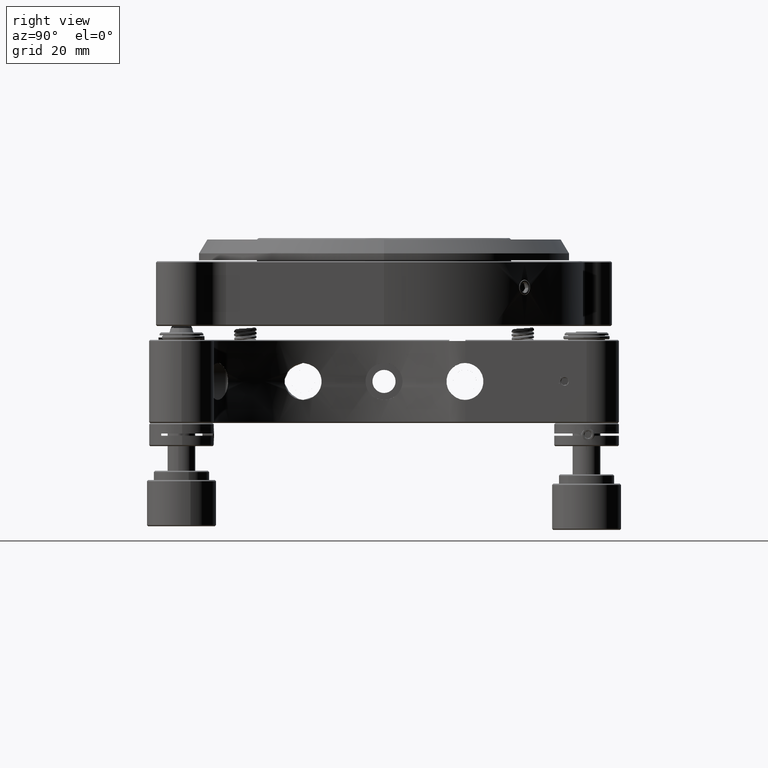
[diagram: clean part render]
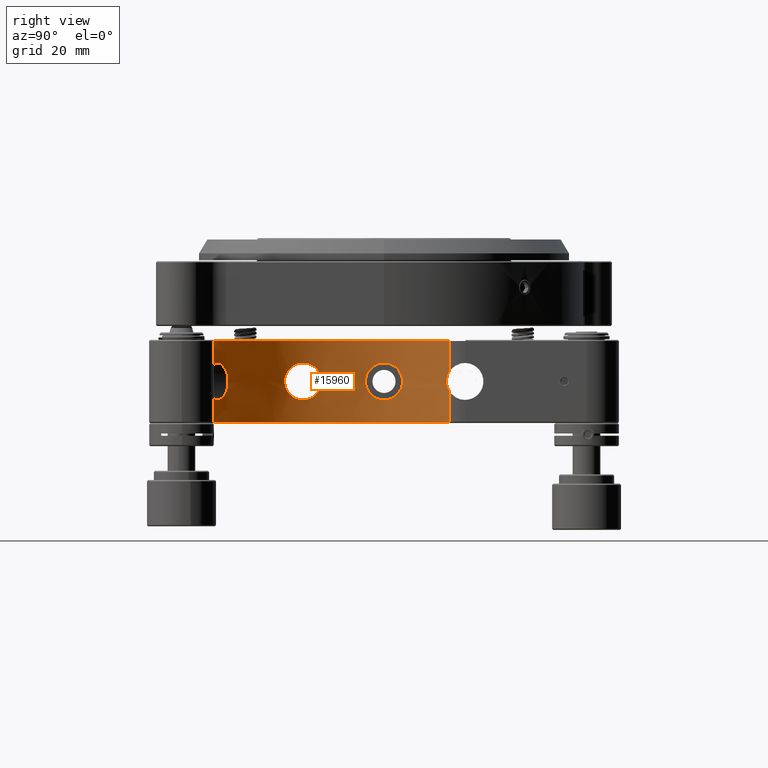
[diagram: same view with one face highlighted and labeled with its STEP entity id]
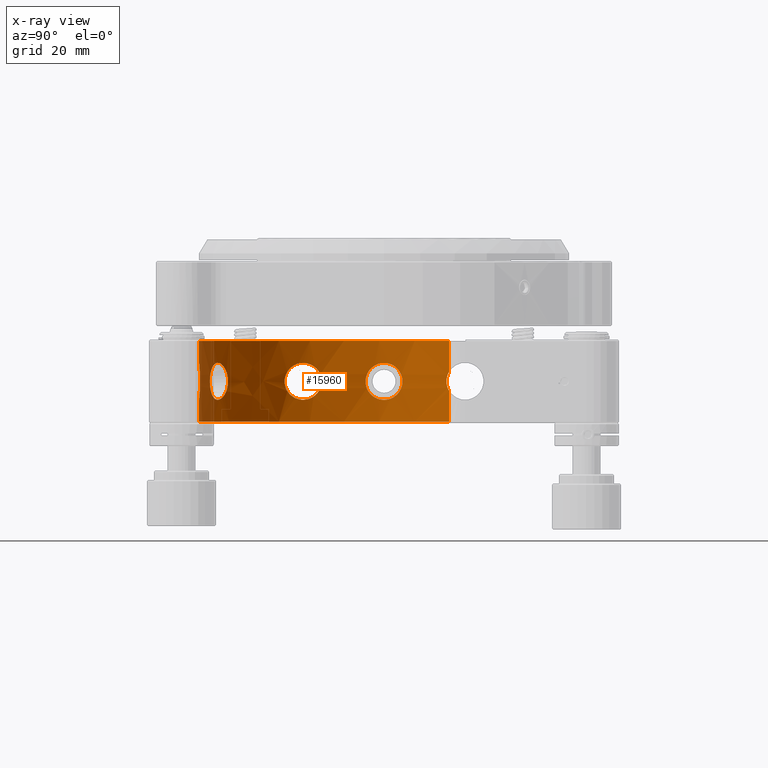
[diagram: x-ray of the same camera — body ghosted, the highlighted face saturated]
A machine part, right view. The second image highlights one B-rep face of the part: STEP entity #15960.
The next image is the same camera in x-ray: the body ghosted, the highlighted face saturated — about 6% of this face is hidden behind the body in this view.
In plain terms, the highlighted face is a freeform B-spline surface patch.
Its self-contained STEP definition (entity closure, byte-faithful):
#61 = EDGE_LOOP ( 'NONE', ( #30459, #5881 ) ) ;
#98 = CARTESIAN_POINT ( 'NONE',  ( -37.63835189146328020, -13.54115509620776514, 0.6677654699018493734 ) ) ;
#163 = CARTESIAN_POINT ( 'NONE',  ( -39.99627761774787871, -0.5524775610635955791, -3.962621721060270996 ) ) ;
#363 = CARTESIAN_POINT ( 'NONE',  ( -39.90019896784426123, -2.830254653130989784, 2.837940357245692269 ) ) ;
#505 = CARTESIAN_POINT ( 'NONE',  ( -39.99972855927739346, 0.1542877115653384368, 3.997317333208897150 ) ) ;
#697 = CARTESIAN_POINT ( 'NONE',  ( -39.96844666813080238, 1.604603727495569565, -3.671971395014493655 ) ) ;
#739 = CARTESIAN_POINT ( 'NONE',  ( -39.99829199285389336, -0.3749458644491316939, -3.982917223032022225 ) ) ;
#891 = CARTESIAN_POINT ( 'NONE',  ( -39.92557931512293834, 2.441684322637925675, -3.171655794013915397 ) ) ;
#943 = CARTESIAN_POINT ( 'NONE',  ( -39.94624908641521444, -2.078521805343463758, 3.421919726168121567 ) ) ;
#1098 = CARTESIAN_POINT ( 'NONE',  ( -39.80369778350723209, 3.958936789472232931, 0.6678191733673830566 ) ) ;
#1138 = CARTESIAN_POINT ( 'NONE',  ( -3.978625646885996403, -39.80169568204865982, 0.4846373347652446206 ) ) ;
#1265 = CARTESIAN_POINT ( 'NONE',  ( -36.10428380966636297, -17.21865001847046273, -3.990154746224642057 ) ) ;
#1334 = CARTESIAN_POINT ( 'NONE',  ( -0.4765487759058549821, -40.00000000000000000, -3.999999999999996447 ) ) ;
#1462 = CARTESIAN_POINT ( 'NONE',  ( -17.34394818696541307, -36.04427922726007694, -3.997232773962706265 ) ) ;
#1523 = CARTESIAN_POINT ( 'NONE',  ( -0.4765305517823545944, -39.99999999999999289, 3.999999999999995559 ) ) ;
#1841 = CARTESIAN_POINT ( 'NONE',  ( -15.91005993947546671, -36.69985822406773224, 3.671740031944090266 ) ) ;
#1967 = CARTESIAN_POINT ( 'NONE',  ( -17.60100897153016319, -35.91959216298144497, -3.999999999999994227 ) ) ;
#2034 = CARTESIAN_POINT ( 'NONE',  ( -17.49999999999999645, -35.96873642484539602, 3.999999999999995559 ) ) ;
#2097 = EDGE_CURVE ( 'NONE', #2137, #26670, #9236, .T. ) ;
#2111 = B_SPLINE_CURVE_WITH_KNOTS ( 'NONE', 3,
 ( #21247, #1334, #34044, #7822, #37602, #37787, #7045, #19441, #22600, #25568, #25752, #25371, #1138, #4665, #7621, #34629, #4281, #31475, #7433, #31086, #1523, #37967 ),
 .UNSPECIFIED., .F., .F.,
 ( 4, 2, 2, 2, 2, 2, 2, 2, 2, 2, 4 ),
 ( -0.01251363910665968630, -0.01094943421832722530, -0.009385229329994766029, -0.007821024441662305024, -0.007038921997496074522, -0.006256819553329844887, -0.005474717109163614384, -0.004692614664997383014, -0.003128409776664923744, -0.001564204888332461005, 0.000000000000000000 ),
 .UNSPECIFIED. ) ;
#2137 = VERTEX_POINT ( 'NONE', #19058 ) ;
#2159 = DIRECTION ( 'NONE',  ( -0.000000000000000000, -0.000000000000000000, -1.000000000000000000 ) ) ;
#2308 = CARTESIAN_POINT ( 'NONE',  ( -34.44888157187676825, -20.33034373189430255, -2.837823029014417742 ) ) ;
#2358 = CARTESIAN_POINT ( 'NONE',  ( -17.92730020087754639, -35.75771616855123369, 3.977784140755788123 ) ) ;
#2506 = CARTESIAN_POINT ( 'NONE',  ( -33.73054830822407268, -21.50000257736197895, 0.3338952163069119905 ) ) ;
#2557 = CARTESIAN_POINT ( 'NONE',  ( -18.30218780570437787, -35.56751152720526221, 3.921308254659097603 ) ) ;
#2620 = CARTESIAN_POINT ( 'NONE',  ( -13.71372265809628566, -37.57581984542393627, -1.335518498577112245 ) ) ;
#2657 = CARTESIAN_POINT ( 'NONE',  ( -37.52815547312672351, -13.84485624806169568, 1.669369033324699991 ) ) ;
#2679 = ORIENTED_EDGE ( 'NONE', *, *, #21130, .T. ) ;
#2695 = CARTESIAN_POINT ( 'NONE',  ( -35.83011725993910801, -17.78212400804123305, 3.990185732374598615 ) ) ;
#2753 = CARTESIAN_POINT ( 'NONE',  ( -21.45883272350323878, -33.75690909726704092, 0.6678205867305124777 ) ) ;
#2860 = CARTESIAN_POINT ( 'NONE',  ( -36.55730634851546768, -16.23510725322373460, 3.796669672036292020 ) ) ;
#2900 = CARTESIAN_POINT ( 'NONE',  ( -34.80816480681212965, -19.70811317310840138, 3.338368793541058199 ) ) ;
#3049 = CARTESIAN_POINT ( 'NONE',  ( -36.96189041479899373, -15.29165108023985731, -3.338277056739678894 ) ) ;
#3091 = CARTESIAN_POINT ( 'NONE',  ( 40.00000000000000000, 0.000000000000000000, 10.50119999999999543 ) ) ;
#3121 = CARTESIAN_POINT ( 'NONE',  ( -39.86772292290690700, -3.253114051716815336, 2.337212283783952849 ) ) ;
#3132 = ORIENTED_EDGE ( 'NONE', *, *, #3406, .T. ) ;
#3308 = CARTESIAN_POINT ( 'NONE',  ( -39.92558172560803342, -2.441645083704542252, 3.171684462367527768 ) ) ;
#3316 = ORIENTED_EDGE ( 'NONE', *, *, #31764, .F. ) ;
#3351 = VERTEX_POINT ( 'NONE', #19310 ) ;
#3406 = EDGE_CURVE ( 'NONE', #19738, #34666, #13116, .T. ) ;
#3437 = CARTESIAN_POINT ( 'NONE',  ( -36.38876720315924729, -16.60921104419410810, -3.900493340279390431 ) ) ;
#3448 = CARTESIAN_POINT ( 'NONE',  ( 1.656376832334224318E-15, -4.317300331868715543E-16, -8.750000000000010658 ) ) ;
#3467 = CARTESIAN_POINT ( 'NONE',  ( -39.83311961670013090, 3.655150544130703949, -1.669462070535219000 ) ) ;
#3506 = CARTESIAN_POINT ( 'NONE',  ( -39.83309317971568220, -3.655449600149863087, 1.669484392498999048 ) ) ;
#3626 = CARTESIAN_POINT ( 'NONE',  ( -36.14926851131871643, -17.12411333665545143, -3.982729677400198565 ) ) ;
#3649 = CARTESIAN_POINT ( 'NONE',  ( -39.99829182042948617, 0.3749650873344573254, 3.982917145378676693 ) ) ;
#3846 = CARTESIAN_POINT ( 'NONE',  ( -39.88867237200804539, 2.985277308223943216, -2.671017699753407637 ) ) ;
#4046 = CARTESIAN_POINT ( 'NONE',  ( -39.85827566773672004, 3.365597535261287909, -2.170263617567433023 ) ) ;
#4281 = CARTESIAN_POINT ( 'NONE',  ( -3.215449219817965609, -39.87242481481645484, 2.441144158693299815 ) ) ;
#4554 = ORIENTED_EDGE ( 'NONE', *, *, #30686, .F. ) ;
#4665 = CARTESIAN_POINT ( 'NONE',  ( -3.885541407282063098, -39.81086023617326219, 0.9833124409890779960 ) ) ;
#4682 = CARTESIAN_POINT ( 'NONE',  ( -35.89245975460747928, -17.65598947725379375, -3.997235218005045443 ) ) ;
#4919 = CARTESIAN_POINT ( 'NONE',  ( -18.39291829531251565, -35.52054567398268148, 3.900602226900349745 ) ) ;
#4982 = CARTESIAN_POINT ( 'NONE',  ( -17.07729756425152345, -36.17137260131564602, 3.977680761887338878 ) ) ;
#5105 = CARTESIAN_POINT ( 'NONE',  ( -18.99159834760485666, -35.20420040744212997, -3.713450883852470685 ) ) ;
#5175 = CARTESIAN_POINT ( 'NONE',  ( -13.54111676439759648, -37.63836583822268267, -0.6677690217815605012 ) ) ;
#5192 = VERTEX_POINT ( 'NONE', #23161 ) ;
#5254 = CARTESIAN_POINT ( 'NONE',  ( -33.86603286373001964, -21.28619870528670077, -1.335560782773965727 ) ) ;
#5258 = CARTESIAN_POINT ( 'NONE',  ( -39.99999999999999289, -39.99999999999999289, -10.50120000000001319 ) ) ;
#5309 = CARTESIAN_POINT ( 'NONE',  ( -20.04579463261882566, -34.61470984718273769, 3.088168212165855575 ) ) ;
#5453 = CARTESIAN_POINT ( 'NONE',  ( -35.56909644880524013, -18.29910995388300066, 3.921250007964292461 ) ) ;
#5505 = CARTESIAN_POINT ( 'NONE',  ( -21.45890526562571665, -33.75686324385466008, -0.6677500684353099292 ) ) ;
#5566 = CARTESIAN_POINT ( 'NONE',  ( -14.66949457456827766, -37.21354354537511000, -2.837745341127479559 ) ) ;
#5605 = CARTESIAN_POINT ( 'NONE',  ( -36.81214506662873731, -15.64841028571921733, 3.546754437522040782 ) ) ;
#5649 = CARTESIAN_POINT ( 'NONE',  ( -34.35655812973212164, -20.48539342985867862, -2.670936438093695742 ) ) ;
#5700 = CARTESIAN_POINT ( 'NONE',  ( -19.70823889027717257, -34.80809398723091874, -3.338347044205813852 ) ) ;
#5767 = CARTESIAN_POINT ( 'NONE',  ( -16.61023697856343873, -36.38829933815286921, 3.900483348401133199 ) ) ;
#5808 = CARTESIAN_POINT ( 'NONE',  ( -37.65302096203562598, -13.50000046046312363, -0.3338729545792272768 ) ) ;
#5843 = CARTESIAN_POINT ( 'NONE',  ( -34.88122563988745384, -19.57881921008947401, -3.421765220045678735 ) ) ;
#5845 = CARTESIAN_POINT ( 'NONE',  ( 2.449293598294706513E-15, 40.00000000000000000, 10.50119999999999543 ) ) ;
#5881 = ORIENTED_EDGE ( 'NONE', *, *, #35741, .T. ) ;
#6075 = CARTESIAN_POINT ( 'NONE',  ( -39.99525938616459797, -0.6187087976194743932, -3.952357451064196336 ) ) ;
#6115 = CARTESIAN_POINT ( 'NONE',  ( -40.00000000000000000, -5.573779343259506741E-15, -3.999999999999994227 ) ) ;
#6196 = CARTESIAN_POINT ( 'NONE',  ( -37.27395507910442518, -14.51457486872652147, -2.670838904263325819 ) ) ;
#6265 = CARTESIAN_POINT ( 'NONE',  ( -39.99627739497348955, -0.5524933271334515617, 3.962621675255184606 ) ) ;
#6271 = CARTESIAN_POINT ( 'NONE',  ( -7.347880794884118356E-15, -40.00000000000000000, -8.673617379884035472E-15 ) ) ;
#6388 = CARTESIAN_POINT ( 'NONE',  ( -37.65302128304967511, -13.49999956511881471, 0.3338922949865094081 ) ) ;
#6453 = CARTESIAN_POINT ( 'NONE',  ( -39.99829181772172149, -0.3749657552671767369, 3.982917039168228257 ) ) ;
#6617 = CARTESIAN_POINT ( 'NONE',  ( -39.93918788383908236, 2.207935044105936218, -3.338490986685100026 ) ) ;
#6631 = CARTESIAN_POINT ( 'NONE',  ( -39.99999999999999289, 39.99999999999999289, 10.50119999999999543 ) ) ;
#6656 = CARTESIAN_POINT ( 'NONE',  ( -39.80369434399811013, -3.958972849091661583, 0.6678061766307894498 ) ) ;
#6676 = CARTESIAN_POINT ( 'NONE',  ( -17.49999999999999645, -35.96873642484539602, 3.999999999999995559 ) ) ;
#7006 = CARTESIAN_POINT ( 'NONE',  ( -39.85827720001577745, 3.365580616311291795, 2.170295114740126152 ) ) ;
#7045 = CARTESIAN_POINT ( 'NONE',  ( -3.519337831817657136, -39.84541039389105777, -1.973461519308827405 ) ) ;
#7169 = CARTESIAN_POINT ( 'NONE',  ( -36.17173939000083038, -17.07652106985889873, -3.977688795606788119 ) ) ;
#7198 = CARTESIAN_POINT ( 'NONE',  ( -39.94625113492547541, 2.078482011738460145, -3.421889926630354406 ) ) ;
#7312 = CARTESIAN_POINT ( 'NONE',  ( 3.001117515795942703E-15, -40.00000000000000000, 3.999999999999994671 ) ) ;
#7367 = CARTESIAN_POINT ( 'NONE',  ( -35.96873642484539602, -17.50000000000000355, -3.999999999999993339 ) ) ;
#7433 = CARTESIAN_POINT ( 'NONE',  ( -1.975861943366360451, -39.95420859884185205, 3.518141083846721084 ) ) ;
#7451 = CARTESIAN_POINT ( 'NONE',  ( -35.69409215689682213, -18.05384041457368838, -3.962456065646545067 ) ) ;
#7621 = CARTESIAN_POINT ( 'NONE',  ( -3.813567771930539418, -39.81794455982836922, 1.235628204148385478 ) ) ;
#7786 = B_SPLINE_CURVE_WITH_KNOTS ( 'NONE', 3,
 ( #35673, #1967, #29737, #26589, #35467, #13966, #20274, #8657, #11038, #11814, #38630, #8457, #19889, #5105, #14756, #26001, #20479, #38042, #5700, #38233, #11619, #8072, #29352, #23059, #32510, #20084, #11217, #5505, #35083, #34894, #2753, #26793, #17506, #17111, #7888, #38833, #31927, #5309, #14163, #29543, #28962, #14551, #20675, #26198, #14354, #4919, #2557, #23250, #32702, #2358, #16922, #26394, #38431, #11417, #36458, #6676 ),
 .UNSPECIFIED., .F., .F.,
 ( 4, 2, 2, 2, 2, 2, 2, 2, 2, 2, 2, 2, 2, 2, 2, 2, 2, 2, 2, 2, 2, 2, 2, 2, 2, 2, 2, 4 ),
 ( 0.000000000000000000, 1.306553423742461432E-05, 2.613106847484922865E-05, 5.226213694969728500E-05, 0.0001045242738993950986, 0.0002090485477987931245, 0.0004180970955975926457, 0.0006271456433963921127, 0.0008361941911951915798, 0.001254291286792789863, 0.001672388382390388364, 0.002508582573585569318, 0.003344776764780751140, 0.005017165147171119555, 0.006689553529561488403, 0.008361941911951857251, 0.01003433029434222523, 0.01087052448553740489, 0.01170671867673258454, 0.01212481577233016743, 0.01254291286792774858, 0.01296100996352532973, 0.01317005851132412551, 0.01327458278522352340, 0.01332684492217322235, 0.01335297599064807356, 0.01336604152488550003, 0.01337910705912292650 ),
 .UNSPECIFIED. ) ;
#7822 = CARTESIAN_POINT ( 'NONE',  ( -1.975825443619966704, -39.95420606110928219, -3.518148438699475911 ) ) ;
#7841 = CARTESIAN_POINT ( 'NONE',  ( -39.99999999999999289, 39.99999999999999289, -10.50120000000001319 ) ) ;
#7888 = CARTESIAN_POINT ( 'NONE',  ( -20.75323866529611649, -34.19543130784988705, 2.337164092831633067 ) ) ;
#7954 = CARTESIAN_POINT ( 'NONE',  ( -16.70177429548267511, -36.34650170559374516, 3.921190617449004989 ) ) ;
#8072 = CARTESIAN_POINT ( 'NONE',  ( -20.33028373454773075, -34.44891593492126702, -2.837796595770481378 ) ) ;
#8209 = CARTESIAN_POINT ( 'NONE',  ( -35.20419650453125371, -18.99160646389283968, 3.713471418728436113 ) ) ;
#8251 = CARTESIAN_POINT ( 'NONE',  ( -37.72079920409428411, 13.30621447434415572, 2.385244779468109755E-15 ) ) ;
#8352 = ORIENTED_EDGE ( 'NONE', *, *, #38044, .T. ) ;
#8404 = CARTESIAN_POINT ( 'NONE',  ( -34.44886245456238072, -20.33037667377405100, 2.837820188941165167 ) ) ;
#8457 = CARTESIAN_POINT ( 'NONE',  ( -18.63909200972604552, -35.39235969563701900, -3.838274222860212692 ) ) ;
#8527 = CARTESIAN_POINT ( 'NONE',  ( -13.50001557207532343, -37.65301554396390316, 0.3338684224716251259 ) ) ;
#8564 = CARTESIAN_POINT ( 'NONE',  ( -37.57584963709800263, -13.71364059961371318, 1.335515604476839258 ) ) ;
#8608 = FACE_BOUND ( 'NONE', #61, .T. ) ;
#8657 = CARTESIAN_POINT ( 'NONE',  ( -18.05343668447303074, -35.69429726682950132, -3.962431518012581311 ) ) ;
#8670 = VERTEX_POINT ( 'NONE', #13414 ) ;
#8721 = CARTESIAN_POINT ( 'NONE',  ( -16.36132676885475590, -36.50123547485710418, 3.838223078138996325 ) ) ;
#8760 = CARTESIAN_POINT ( 'NONE',  ( -37.52815719176339115, -13.84485129874159348, -1.669349700123401226 ) ) ;
#8797 = CARTESIAN_POINT ( 'NONE',  ( -34.61491806006094407, -20.04543670571909786, 3.088120219692038315 ) ) ;
#8956 = B_SPLINE_CURVE_WITH_KNOTS ( 'NONE', 3,
 ( #17064, #26148, #4682, #13350, #16308, #16690, #25392, #7451, #19461, #13724, #25770, #37803, #10787, #21019, #29491, #26931, #14695, #5843, #35811, #29683, #17263, #2308, #5649, #29884, #23601, #29298, #5254, #23203, #17652, #2506, #18055, #11563, #11172, #15091, #38187, #38575, #8404, #8797, #26739, #2900, #11760, #35624, #35227, #38978, #8209, #20225, #14499, #38782, #5453, #11958, #32259, #17454, #14901, #2695, #23989, #23792, #17846, #36016 ),
 .UNSPECIFIED., .F., .F.,
 ( 4, 2, 2, 2, 2, 2, 2, 2, 2, 2, 2, 2, 2, 2, 2, 2, 2, 2, 2, 2, 2, 2, 2, 2, 2, 2, 2, 2, 4 ),
 ( 0.01305559784730942266, 0.01306866328133887874, 0.01308172871536833481, 0.01310785958342724697, 0.01316012131954506954, 0.01326464479178071469, 0.01347369173625200846, 0.01368273868072330049, 0.01389178562519459426, 0.01430987951413717485, 0.01472797340307975544, 0.01556416118096490796, 0.01640034895885006047, 0.01807272451462035856, 0.01974510007039066012, 0.02141747562616095821, 0.02308985118193125630, 0.02392603895981641055, 0.02476222673770156479, 0.02518032062664413845, 0.02559841451558671904, 0.02580746146005800934, 0.02601650840452929964, 0.02622555534900058993, 0.02633007882123623855, 0.02638234055735406286, 0.02640847142541297154, 0.02642153685944242936, 0.02643460229347188023 ),
 .UNSPECIFIED. ) ;
#9069 = CARTESIAN_POINT ( 'NONE',  ( -39.99628638080277199, 0.5519041445888055453, -3.962587149442783563 ) ) ;
#9144 = VECTOR ( 'NONE', #10786, 1000.000000000000000 ) ;
#9162 = CARTESIAN_POINT ( 'NONE',  ( -36.96184117897875154, -15.29176962483961510, 3.338296346180967156 ) ) ;
#9174 = DIRECTION ( 'NONE',  ( -1.320629267893251311E-16, 1.000000000000000000, 0.000000000000000000 ) ) ;
#9228 = CARTESIAN_POINT ( 'NONE',  ( -40.00000000000000000, -0.09834590546397786737, 3.999999999143893259 ) ) ;
#9236 = LINE ( 'NONE', #6271, #37662 ) ;
#9353 = CARTESIAN_POINT ( 'NONE',  ( -36.38869345367492514, -16.60937245230862658, 3.900512330828853180 ) ) ;
#9418 = CARTESIAN_POINT ( 'NONE',  ( -39.93919047165844205, -2.207888428243577117, 3.338520395585077960 ) ) ;
#9561 = CARTESIAN_POINT ( 'NONE',  ( -39.88867461541710924, 2.985247492162294236, 2.671049320915570569 ) ) ;
#9579 = CARTESIAN_POINT ( 'NONE',  ( 40.00000000000000000, 0.000000000000000000, 10.50119999999999543 ) ) ;
#9606 = CARTESIAN_POINT ( 'NONE',  ( -39.96844893078883842, -1.604570507497588672, 3.672023015596482587 ) ) ;
#9806 = CARTESIAN_POINT ( 'NONE',  ( -39.98017925467951983, -1.264181899627357497, 3.796897296038140190 ) ) ;
#9958 = CARTESIAN_POINT ( 'NONE',  ( -39.99221747108655478, 0.7980189221390447951, 3.921428583463926643 ) ) ;
#9999 = CARTESIAN_POINT ( 'NONE',  ( -39.99927146980769521, -0.2457058176514392012, 3.992733918611103938 ) ) ;
#10411 = CARTESIAN_POINT ( 'NONE',  ( -35.96873642484539602, -17.50000000000000355, 3.999999999999998224 ) ) ;
#10470 = DIRECTION ( 'NONE',  ( 0.000000000000000000, -0.000000000000000000, 1.000000000000000000 ) ) ;
#10786 = DIRECTION ( 'NONE',  ( -0.000000000000000000, -0.000000000000000000, -1.000000000000000000 ) ) ;
#10787 = CARTESIAN_POINT ( 'NONE',  ( -35.32569175766462877, -18.76464942603919184, -3.796719836841353057 ) ) ;
#10824 = CARTESIAN_POINT ( 'NONE',  ( -37.58524304980341668, 13.69378552665911286, 1.437806344042724671 ) ) ;
#10890 = B_SPLINE_CURVE_WITH_KNOTS ( 'NONE', 3,
 ( #23951, #20977, #33208, #23556, #24342, #15051, #32805, #36180, #36373, #18014, #9353, #38939, #2860, #27089, #24142, #30044, #5605, #23753, #9162, #35776, #35974, #35579, #20583, #18400, #21181, #2657, #8564, #98, #6388, #5808, #11920, #21373, #8760, #17806, #32612, #6196, #33009, #29645, #14655, #3049, #33405, #12112, #38740, #18207, #15243, #11719, #30434, #3437, #26499, #34368, #18983, #7169, #3626, #1265, #12677, #31216, #31014, #7367 ),
 .UNSPECIFIED., .F., .F.,
 ( 4, 2, 2, 2, 2, 2, 2, 2, 2, 2, 2, 2, 2, 2, 2, 2, 2, 2, 2, 2, 2, 2, 2, 2, 2, 2, 2, 2, 4 ),
 ( 0.000000000000000000, 1.274960727276226442E-05, 2.549921454552452884E-05, 5.099842909105130063E-05, 0.0001019968581821048645, 0.0002039937163642094580, 0.0004079874327284187534, 0.0006119811490926280488, 0.0008159748654568372899, 0.001223962298185258700, 0.001631949730913680001, 0.002447924596370516966, 0.003263899461827353497, 0.004895849192741033931, 0.006527798923654713932, 0.008159748654568393933, 0.009791698385482074801, 0.01060767325093891524, 0.01142364811639575393, 0.01183163554912417328, 0.01223962298185259090, 0.01244361669821679971, 0.01264761041458100678, 0.01285160413094521385, 0.01295360098912731739, 0.01300459941821836829, 0.01303009863276389547, 0.01304284824003665993, 0.01305559784730942266 ),
 .UNSPECIFIED. ) ;
#10901 = CARTESIAN_POINT ( 'NONE',  ( -13.49998502986232118, -37.65302649447659888, -0.3338961793522597921 ) ) ;
#10977 = DIRECTION ( 'NONE',  ( -0.000000000000000000, -0.000000000000000000, -1.000000000000000000 ) ) ;
#10984 = FACE_OUTER_BOUND ( 'NONE', #23970, .T. ) ;
#11038 = CARTESIAN_POINT ( 'NONE',  ( -18.11953891952857632, -35.66071841746126125, -3.952168228614455270 ) ) ;
#11104 = CARTESIAN_POINT ( 'NONE',  ( -14.24664911671806067, -37.37718069468670734, 2.337023432241631671 ) ) ;
#11172 = CARTESIAN_POINT ( 'NONE',  ( -33.94848807208483521, -21.15541536799128153, 1.669421401508578873 ) ) ;
#11217 = CARTESIAN_POINT ( 'NONE',  ( -21.28624116163901547, -33.86600608976425519, -1.335528848500605603 ) ) ;
#11290 = CARTESIAN_POINT ( 'NONE',  ( -14.95454478333124904, -37.09948872818256405, -3.088045562986074799 ) ) ;
#11415 = LINE ( 'NONE', #17315, #19787 ) ;
#11417 = CARTESIAN_POINT ( 'NONE',  ( -17.65706112169367969, -35.89193332914944534, 3.997267397570690495 ) ) ;
#11483 = CARTESIAN_POINT ( 'NONE',  ( -13.71362851210241374, -37.57585404873987756, 1.335490776355157116 ) ) ;
#11563 = CARTESIAN_POINT ( 'NONE',  ( -33.86617852510453019, -21.28596794750880861, 1.335557439736574592 ) ) ;
#11619 = CARTESIAN_POINT ( 'NONE',  ( -20.04562224970196382, -34.61481027070458794, -3.088097709457097384 ) ) ;
#11683 = CARTESIAN_POINT ( 'NONE',  ( -16.00817139345306828, -36.65724796460479240, 3.713389668917890685 ) ) ;
#11719 = CARTESIAN_POINT ( 'NONE',  ( -36.55735936969293931, -16.23498745596258530, -3.796650538116549178 ) ) ;
#11760 = CARTESIAN_POINT ( 'NONE',  ( -34.88121991070380545, -19.57882946743105990, 3.421762551217021109 ) ) ;
#11788 = VERTEX_POINT ( 'NONE', #10411 ) ;
#11814 = CARTESIAN_POINT ( 'NONE',  ( -18.29937041865149183, -35.56896339653530248, -3.921230657037477751 ) ) ;
#11920 = CARTESIAN_POINT ( 'NONE',  ( -37.63835532569446940, -13.54114554949558524, -0.6677461311841387248 ) ) ;
#11958 = CARTESIAN_POINT ( 'NONE',  ( -35.66068008720024096, -18.11961389049273308, 3.952188511046788033 ) ) ;
#12112 = CARTESIAN_POINT ( 'NONE',  ( -36.81204015863662704, -15.64865752105366603, -3.546734664514802571 ) ) ;
#12184 = CARTESIAN_POINT ( 'NONE',  ( -39.80369353416485012, -3.958981257613564342, -0.6678059020636066823 ) ) ;
#12212 = VERTEX_POINT ( 'NONE', #25909 ) ;
#12223 = CARTESIAN_POINT ( 'NONE',  ( -39.99903721531342882, 0.2793020805272436458, -3.990275934195199881 ) ) ;
#12376 = CARTESIAN_POINT ( 'NONE',  ( -39.99902731721645210, -0.2807140240339609516, -3.990313661952396007 ) ) ;
#12413 = CARTESIAN_POINT ( 'NONE',  ( -39.98414241009650283, 1.138322817272148235, -3.838435970947684961 ) ) ;
#12518 = CARTESIAN_POINT ( 'NONE',  ( -39.97235878779110152, 1.491122885847578905, 3.713648518983043711 ) ) ;
#12560 = CARTESIAN_POINT ( 'NONE',  ( -39.99778688482295763, -0.4229751755644930444, -3.977877821226326827 ) ) ;
#12677 = CARTESIAN_POINT ( 'NONE',  ( -36.08793684607716301, -17.25292443399941433, -3.992575322088570022 ) ) ;
#12705 = CARTESIAN_POINT ( 'NONE',  ( -39.95721465350145962, 1.851151157140964232, 3.546986834750959883 ) ) ;
#12721 = VERTEX_POINT ( 'NONE', #14932 ) ;
#12746 = CARTESIAN_POINT ( 'NONE',  ( -39.79949773549846981, -3.999997500256501137, -0.3339077549758500130 ) ) ;
#12904 = CARTESIAN_POINT ( 'NONE',  ( -39.98017021494177214, 1.264460410870918983, -3.796854885055648943 ) ) ;
#12905 = EDGE_LOOP ( 'NONE', ( #33957, #16096 ) ) ;
#12947 = CARTESIAN_POINT ( 'NONE',  ( -39.96088176243087986, -1.775104993580834511, 3.588673506671359981 ) ) ;
#13093 = ORIENTED_EDGE ( 'NONE', *, *, #13938, .T. ) ;
#13101 = CARTESIAN_POINT ( 'NONE',  ( -39.80370360910711014, 3.958875327449510095, -0.6677878741478132651 ) ) ;
#13116 = B_SPLINE_CURVE_WITH_KNOTS ( 'NONE', 3,
 ( #32110, #35269, #8251, #10824, #17307 ),
 .UNSPECIFIED., .F., .F.,
 ( 4, 1, 4 ),
 ( 0.002293801106072025121, 0.004477242161932548301, 0.006660683217793070612 ),
 .UNSPECIFIED. ) ;
#13218 = CARTESIAN_POINT ( 'NONE',  ( -5.714247104759874530E-15, 0.000000000000000000, 8.749999999999989342 ) ) ;
#13350 = CARTESIAN_POINT ( 'NONE',  ( -35.84705442929428898, -17.74799482759180691, -3.992607883776797983 ) ) ;
#13414 = CARTESIAN_POINT ( 'NONE',  ( -4.310163876117375622E-15, -40.00000000000000711, 8.749999999999994671 ) ) ;
#13471 = CARTESIAN_POINT ( 'NONE',  ( -17.25193084426799572, -36.08841207187465727, -3.992600858229501171 ) ) ;
#13545 = LINE ( 'NONE', #20427, #9144 ) ;
#13724 = CARTESIAN_POINT ( 'NONE',  ( -35.56911214064955828, -18.29907925130916624, -3.921252440413474094 ) ) ;
#13844 = CARTESIAN_POINT ( 'NONE',  ( -16.94746157836884137, -36.23248125500798977, 3.962403137919915608 ) ) ;
#13938 = EDGE_CURVE ( 'NONE', #8670, #32766, #32063, .T. ) ;
#13966 = CARTESIAN_POINT ( 'NONE',  ( -17.87564974812782026, -35.78360099565349373, -3.982739550160347530 ) ) ;
#14029 = CARTESIAN_POINT ( 'NONE',  ( -16.94596765961514961, -36.23317995953654247, -3.962434963647353481 ) ) ;
#14091 = CARTESIAN_POINT ( 'NONE',  ( 5.884233204720381923E-16, -40.00000000000000711, -8.750000000000017764 ) ) ;
#14163 = CARTESIAN_POINT ( 'NONE',  ( -19.94239403249284592, -34.67447054968486952, 3.171592193198758736 ) ) ;
#14226 = CARTESIAN_POINT ( 'NONE',  ( -14.51482030543509971, -37.27385999918808324, 2.670832064291802421 ) ) ;
#14354 = CARTESIAN_POINT ( 'NONE',  ( -18.63979364391381921, -35.39198392990194009, 3.838345838255060372 ) ) ;
#14424 = CARTESIAN_POINT ( 'NONE',  ( -17.07579239047792541, -36.17208318182016313, -3.977712830641157993 ) ) ;
#14499 = CARTESIAN_POINT ( 'NONE',  ( -35.39260380820664409, -18.63862683896090644, 3.838293504261650835 ) ) ;
#14551 = CARTESIAN_POINT ( 'NONE',  ( -19.27635387542368761, -35.04928527725257226, 3.588554827311393414 ) ) ;
#14566 = CARTESIAN_POINT ( 'NONE',  ( -39.99973200426818210, 0.1533276126226451874, -3.997287237890195133 ) ) ;
#14615 = CARTESIAN_POINT ( 'NONE',  ( -16.00822594689878997, -36.65722426130426470, -3.713417046389952514 ) ) ;
#14655 = CARTESIAN_POINT ( 'NONE',  ( -37.05767184344627907, -15.05805078152075360, -3.171449154333468634 ) ) ;
#14695 = CARTESIAN_POINT ( 'NONE',  ( -35.00754346140544726, -19.35147066112380898, -3.546822287880537772 ) ) ;
#14698 = CARTESIAN_POINT ( 'NONE',  ( -7.347880794884118356E-15, -40.00000000000000000, 10.50119999999999543 ) ) ;
#14756 = CARTESIAN_POINT ( 'NONE',  ( -19.08979566927676075, -35.15096327117028352, -3.671804145533473562 ) ) ;
#14901 = CARTESIAN_POINT ( 'NONE',  ( -35.78312617604988333, -17.87660005320531909, 3.982764745626710123 ) ) ;
#14932 = CARTESIAN_POINT ( 'NONE',  ( -35.96873642484539602, -17.50000000000000355, -3.999999999999993339 ) ) ;
#14965 = CARTESIAN_POINT ( 'NONE',  ( -39.99221097690761439, 0.7984034463846000351, -3.921394978609417326 ) ) ;
#15051 = CARTESIAN_POINT ( 'NONE',  ( -36.14970223815048200, -17.12319748901983019, 3.982754267858685360 ) ) ;
#15063 = DIRECTION ( 'NONE',  ( -0.000000000000000000, -0.000000000000000000, 1.000000000000000000 ) ) ;
#15091 = CARTESIAN_POINT ( 'NONE',  ( -34.12677810380339594, -20.86566262300210184, 2.170202672953932321 ) ) ;
#15160 = CARTESIAN_POINT ( 'NONE',  ( -40.00000000000000711, 0.09843684099768502949, -3.999999999999995559 ) ) ;
#15243 = CARTESIAN_POINT ( 'NONE',  ( -36.65720219559420912, -16.00827501548681298, -3.713396747812106380 ) ) ;
#15262 = ORIENTED_EDGE ( 'NONE', *, *, #35597, .F. ) ;
#15310 = CARTESIAN_POINT ( 'NONE',  ( -39.82051792164582338, -3.786013985995888564, 1.335606335647197662 ) ) ;
#15466 = CARTESIAN_POINT ( 'NONE',  ( -39.94624278206673296, 2.078639335355752848, 3.421921944235108093 ) ) ;
#15485 = EDGE_CURVE ( 'NONE', #3351, #31042, #7786, .T. ) ;
#15652 = CARTESIAN_POINT ( 'NONE',  ( -39.99627746945829898, 0.5524877115468111999, 3.962621746301928649 ) ) ;
#15697 = CARTESIAN_POINT ( 'NONE',  ( -39.99927151797771785, -0.2456986816664945006, -3.992734277080547400 ) ) ;
#15849 = CARTESIAN_POINT ( 'NONE',  ( -39.79949743658205108, 4.000000474437445774, 0.3339222849646269475 ) ) ;
#15891 = CARTESIAN_POINT ( 'NONE',  ( -39.91904250962886636, -2.545407606499314745, 3.088255758850261934 ) ) ;
#15960 = ADVANCED_FACE ( 'NONE', ( #10984, #8608, #37806, #26539 ), #31380, .T. ) ;
#16052 = CARTESIAN_POINT ( 'NONE',  ( -39.99778671610342684, 0.4229909389431246725, 3.977877802651156092 ) ) ;
#16056 = EDGE_LOOP ( 'NONE', ( #8352, #18629 ) ) ;
#16096 = ORIENTED_EDGE ( 'NONE', *, *, #20158, .T. ) ;
#16250 = CARTESIAN_POINT ( 'NONE',  ( -39.96093794908068730, 1.769623555286900185, 3.588665431722799948 ) ) ;
#16308 = CARTESIAN_POINT ( 'NONE',  ( -35.83005787532413677, -17.78224365391042738, -3.990189174954507312 ) ) ;
#16690 = CARTESIAN_POINT ( 'NONE',  ( -35.78307374881876513, -17.87670495228519130, -3.982767948560679727 ) ) ;
#16922 = CARTESIAN_POINT ( 'NONE',  ( -17.87968715365590455, -35.78158477126432047, 3.982821740277117328 ) ) ;
#16988 = CARTESIAN_POINT ( 'NONE',  ( -17.34468027240945887, -36.04392657908969966, 3.997209846755081841 ) ) ;
#17064 = CARTESIAN_POINT ( 'NONE',  ( -35.96873642484539602, -17.50000000000000355, -3.999999999999993339 ) ) ;
#17111 = CARTESIAN_POINT ( 'NONE',  ( -20.86562794914554075, -34.12679931835949532, 2.170247260636197772 ) ) ;
#17183 = CARTESIAN_POINT ( 'NONE',  ( -14.95428464470335861, -37.09959321179074010, 3.088018158813630620 ) ) ;
#17263 = CARTESIAN_POINT ( 'NONE',  ( -34.61489895973882369, -20.04546954949207560, -3.088123037979867647 ) ) ;
#17294 = CARTESIAN_POINT ( 'NONE',  ( -40.00000000000000000, -5.573779343259506741E-15, -3.999999999999994227 ) ) ;
#17307 = CARTESIAN_POINT ( 'NONE',  ( -37.44000000000000483, 14.07999999999999119, 2.074511990806489514 ) ) ;
#17315 = CARTESIAN_POINT ( 'NONE',  ( -37.44000000000000483, 14.08000000000000185, 5.412255995403243425 ) ) ;
#17454 = CARTESIAN_POINT ( 'NONE',  ( -35.75934652439338635, -17.92404750180464390, 3.977725488570342804 ) ) ;
#17506 = CARTESIAN_POINT ( 'NONE',  ( -21.15539194714099480, -33.94850272506617017, 1.669464313638353348 ) ) ;
#17574 = CARTESIAN_POINT ( 'NONE',  ( -14.13430820354292194, -37.41967348943375526, 2.170110903891945942 ) ) ;
#17652 = CARTESIAN_POINT ( 'NONE',  ( -33.73055153779128545, -21.49999751061415765, -0.3338985301941597150 ) ) ;
#17715 = CARTESIAN_POINT ( 'NONE',  ( -39.99830476096120435, 0.3735872938563051249, -3.982879291728967264 ) ) ;
#17806 = CARTESIAN_POINT ( 'NONE',  ( -37.41964605610726124, -14.13438047666570441, -2.170117139416810836 ) ) ;
#17846 = CARTESIAN_POINT ( 'NONE',  ( -35.91962900393283320, -17.60093325024620370, 3.999999999999996447 ) ) ;
#18014 = CARTESIAN_POINT ( 'NONE',  ( -36.34696606833457366, -16.70076189762763974, 3.921220055815482830 ) ) ;
#18055 = CARTESIAN_POINT ( 'NONE',  ( -33.75678474794665362, -21.45902986710768090, 0.6677811652396784536 ) ) ;
#18084 = CARTESIAN_POINT ( 'NONE',  ( -39.99018897886115553, -0.8897353034774206915, -3.900724705244052348 ) ) ;
#18207 = CARTESIAN_POINT ( 'NONE',  ( -36.69984173178755782, -15.91009791336798962, -3.671747174151982929 ) ) ;
#18251 = CARTESIAN_POINT ( 'NONE',  ( -39.99999999999999289, -39.99999999999999289, 10.50119999999999543 ) ) ;
#18278 = CARTESIAN_POINT ( 'NONE',  ( -39.99221762766323707, -0.7980088209559796919, 3.921428407678148265 ) ) ;
#18400 = CARTESIAN_POINT ( 'NONE',  ( -37.37717539823605506, -14.24666156607742806, 2.337049191698847395 ) ) ;
#18470 = CARTESIAN_POINT ( 'NONE',  ( -39.85827674431454426, -3.365587762103610991, 2.170287927930419247 ) ) ;
#18629 = ORIENTED_EDGE ( 'NONE', *, *, #30648, .T. ) ;
#18661 = CARTESIAN_POINT ( 'NONE',  ( -39.92558154421553240, -2.441648004777310810, -3.171684233176486956 ) ) ;
#18748 = ORIENTED_EDGE ( 'NONE', *, *, #2097, .T. ) ;
#18809 = CARTESIAN_POINT ( 'NONE',  ( -39.98416149621375837, 1.137614567258794285, 3.838475143896729502 ) ) ;
#18856 = CARTESIAN_POINT ( 'NONE',  ( -40.00000000000000000, -2.286612131153128774E-15, 3.999999999999994227 ) ) ;
#18983 = CARTESIAN_POINT ( 'NONE',  ( -36.23303657743471007, -16.94627598524727219, -3.962413355140745441 ) ) ;
#19009 = CARTESIAN_POINT ( 'NONE',  ( -39.82048903817555185, 3.786313196299932571, -1.335585531726589226 ) ) ;
#19058 = CARTESIAN_POINT ( 'NONE',  ( 3.690136085475475221E-15, -40.00000000000000000, -3.999999999999994227 ) ) ;
#19310 = CARTESIAN_POINT ( 'NONE',  ( -17.49999999999999645, -35.96873642484539602, -3.999999999999991562 ) ) ;
#19441 = CARTESIAN_POINT ( 'NONE',  ( -3.813505336815394831, -39.81794006018198218, -1.235819295748508573 ) ) ;
#19461 = CARTESIAN_POINT ( 'NONE',  ( -35.66067704818545536, -18.11961982065209043, -3.952191039793393479 ) ) ;
#19738 = VERTEX_POINT ( 'NONE', #22665 ) ;
#19755 = CIRCLE ( 'NONE', #21654, 39.99999999999999289 ) ;
#19787 = VECTOR ( 'NONE', #2159, 1000.000000000000000 ) ;
#19889 = CARTESIAN_POINT ( 'NONE',  ( -18.76487142359867377, -35.32557337935091368, -3.796697457433787282 ) ) ;
#19958 = CARTESIAN_POINT ( 'NONE',  ( -16.23516374640122706, -36.55728159790100307, 3.796642964151555333 ) ) ;
#20033 = CARTESIAN_POINT ( 'NONE',  ( -40.00000000000000000, 4.898587196589413026E-15, -10.50120000000001319 ) ) ;
#20084 = CARTESIAN_POINT ( 'NONE',  ( -21.15520907612271984, -33.94861604751278605, -1.669393786890878584 ) ) ;
#20153 = CARTESIAN_POINT ( 'NONE',  ( -15.72985743305646267, -36.77745509058120632, -3.588433446311261932 ) ) ;
#20158 = EDGE_CURVE ( 'NONE', #12721, #11788, #8956, .T. ) ;
#20225 = CARTESIAN_POINT ( 'NONE',  ( -35.32569162928837869, -18.76464970420318323, 3.796717271841512087 ) ) ;
#20274 = CARTESIAN_POINT ( 'NONE',  ( -17.92327089855177036, -35.75973599833191230, -3.977701224840969996 ) ) ;
#20342 = CARTESIAN_POINT ( 'NONE',  ( -14.13440896602361718, -37.41963534593928387, -2.170138635346406275 ) ) ;
#20427 = CARTESIAN_POINT ( 'NONE',  ( -37.44000000000000483, 14.08000000000000185, -5.412255995403249642 ) ) ;
#20479 = CARTESIAN_POINT ( 'NONE',  ( -19.35125852285448644, -35.00766092675260666, -3.546798160690660673 ) ) ;
#20542 = CARTESIAN_POINT ( 'NONE',  ( -14.51456231925990181, -37.27395989384404373, -2.670859986231248762 ) ) ;
#20583 = CARTESIAN_POINT ( 'NONE',  ( -37.27395872961176337, -14.51456534492337092, 2.670858257788897294 ) ) ;
#20675 = CARTESIAN_POINT ( 'NONE',  ( -19.10447859778276936, -35.14377348598230810, 3.671896270406703078 ) ) ;
#20737 = CARTESIAN_POINT ( 'NONE',  ( -16.23528306612482197, -36.55722872802747503, -3.796670161916479991 ) ) ;
#20977 = CARTESIAN_POINT ( 'NONE',  ( -36.01784043498147980, -17.39907376011499807, 3.999999999999996447 ) ) ;
#21019 = CARTESIAN_POINT ( 'NONE',  ( -35.20420168580660203, -18.99159682345696609, -3.713473995789633442 ) ) ;
#21130 = EDGE_CURVE ( 'NONE', #5192, #8670, #21401, .T. ) ;
#21181 = CARTESIAN_POINT ( 'NONE',  ( -37.41963387866538682, -14.13441278662839373, 2.170136462896405938 ) ) ;
#21247 = CARTESIAN_POINT ( 'NONE',  ( 3.690136085475475221E-15, -40.00000000000000000, -3.999999999999994227 ) ) ;
#21373 = CARTESIAN_POINT ( 'NONE',  ( -37.57585322463851440, -13.71363076855582186, -1.335496268529996033 ) ) ;
#21401 = CIRCLE ( 'NONE', #33363, 40.00000000000000711 ) ;
#21416 = CARTESIAN_POINT ( 'NONE',  ( 39.99999999999997868, -39.99999999999999289, -10.50120000000001319 ) ) ;
#21440 = CARTESIAN_POINT ( 'NONE',  ( -39.96088061301832539, -1.775130498456336303, -3.588673318386353284 ) ) ;
#21581 = CARTESIAN_POINT ( 'NONE',  ( -39.83310989179209116, 3.655261044189521247, 1.669493500348698589 ) ) ;
#21625 = CARTESIAN_POINT ( 'NONE',  ( -39.99018796412101295, -0.8897824941011439615, 3.900724911769429593 ) ) ;
#21654 = AXIS2_PLACEMENT_3D ( 'NONE', #3448, #15063, #9174 ) ;
#21655 = CARTESIAN_POINT ( 'NONE',  ( -40.00000000000000000, -2.286612131153128774E-15, 3.999999999999994227 ) ) ;
#21782 = CARTESIAN_POINT ( 'NONE',  ( -40.00000000000000711, 0.09834491873839362741, 3.999999999143978968 ) ) ;
#21786 = ORIENTED_EDGE ( 'NONE', *, *, #32100, .F. ) ;
#21823 = CARTESIAN_POINT ( 'NONE',  ( -39.98415559840974964, -1.137837854567255169, -3.838475043902091599 ) ) ;
#21975 = CARTESIAN_POINT ( 'NONE',  ( -39.90019839622223685, 2.830276409626596212, 2.837944814224569345 ) ) ;
#22174 = CARTESIAN_POINT ( 'NONE',  ( -39.92559876869717783, 2.441357526434706049, 3.171687354120424907 ) ) ;
#22361 = CARTESIAN_POINT ( 'NONE',  ( -17.49999999999999645, -35.96873642484539602, -3.999999999999991562 ) ) ;
#22483 = DIRECTION ( 'NONE',  ( 1.000000000000000000, 0.000000000000000000, 0.000000000000000000 ) ) ;
#22600 = CARTESIAN_POINT ( 'NONE',  ( -3.885492870719132519, -39.81086229323697978, -0.9835054900135963285 ) ) ;
#22665 = CARTESIAN_POINT ( 'NONE',  ( -37.44000000000000483, 14.07999999999999297, -2.074511990806489070 ) ) ;
#22808 = CARTESIAN_POINT ( 'NONE',  ( 40.00000000000000000, 0.000000000000000000, -10.50120000000001319 ) ) ;
#22926 = CARTESIAN_POINT ( 'NONE',  ( -15.29170461768892331, -36.96186831632236647, 3.338269954853406496 ) ) ;
#23011 = CARTESIAN_POINT ( 'NONE',  ( 39.99999999999999289, 39.99999999999999289, -10.50120000000001319 ) ) ;
#23059 = CARTESIAN_POINT ( 'NONE',  ( -20.75330384914638771, -34.19539201999779721, -2.337093658240344762 ) ) ;
#23161 = CARTESIAN_POINT ( 'NONE',  ( -37.44000000000000483, 14.07999999999999474, 8.749999999999991118 ) ) ;
#23203 = CARTESIAN_POINT ( 'NONE',  ( -33.75685880297988462, -21.45891239098268599, -0.6677844914618019656 ) ) ;
#23250 = CARTESIAN_POINT ( 'NONE',  ( -18.12316140137183851, -35.65887700837079421, 3.952249077523864784 ) ) ;
#23320 = CARTESIAN_POINT ( 'NONE',  ( -17.25313772584595995, -36.08783473144254117, 3.992571965876839712 ) ) ;
#23515 = CARTESIAN_POINT ( 'NONE',  ( -15.42106915365989828, -36.90823350341983655, -3.421693435424107310 ) ) ;
#23556 = CARTESIAN_POINT ( 'NONE',  ( -36.08841521468118430, -17.25192428148203305, 3.992600366299455139 ) ) ;
#23601 = CARTESIAN_POINT ( 'NONE',  ( -34.12684162291535017, -20.86555866107784851, -2.170205652953700604 ) ) ;
#23718 = CARTESIAN_POINT ( 'NONE',  ( -17.21766646762048225, -36.10475283657261514, -3.990180721530607322 ) ) ;
#23753 = CARTESIAN_POINT ( 'NONE',  ( -36.90823579327275894, -15.42106371606897852, 3.421692323051007900 ) ) ;
#23792 = CARTESIAN_POINT ( 'NONE',  ( -35.89249955845917839, -17.65590849916574001, 3.997232247868738320 ) ) ;
#23951 = CARTESIAN_POINT ( 'NONE',  ( -35.96873642484539602, -17.50000000000000355, 3.999999999999998224 ) ) ;
#23970 = EDGE_LOOP ( 'NONE', ( #15262, #21786, #3132, #3316, #2679, #13093, #4554, #18748 ) ) ;
#23989 = CARTESIAN_POINT ( 'NONE',  ( -35.84711323142067130, -17.74787599851346087, 3.992604521297878239 ) ) ;
#24142 = CARTESIAN_POINT ( 'NONE',  ( -36.69988106899365476, -15.91000777340267192, 3.671766680875843125 ) ) ;
#24219 = CARTESIAN_POINT ( 'NONE',  ( -39.99778668016541872, -0.4229944101642393317, 3.977877721203843642 ) ) ;
#24342 = CARTESIAN_POINT ( 'NONE',  ( -36.10475384128454834, -17.21766436247896337, 3.990180184422901011 ) ) ;
#24407 = CARTESIAN_POINT ( 'NONE',  ( -39.93919020367133044, -2.207893226132648934, -3.338520171383807522 ) ) ;
#24555 = CARTESIAN_POINT ( 'NONE',  ( -39.98018615953915145, 1.263973563486641805, 3.796897287514652941 ) ) ;
#24569 = CARTESIAN_POINT ( 'NONE',  ( -7.347880794884118356E-15, -40.00000000000000000, -10.50120000000001319 ) ) ;
#24593 = CARTESIAN_POINT ( 'NONE',  ( -39.88869382920596252, -2.984993583078474622, 2.671043971051021426 ) ) ;
#24788 = CARTESIAN_POINT ( 'NONE',  ( -39.96844733108837033, -1.604622185210097252, -3.672022870280038376 ) ) ;
#24947 = CARTESIAN_POINT ( 'NONE',  ( -39.99902723636738244, 0.2807258210065158854, 3.990313532327533164 ) ) ;
#24987 = CARTESIAN_POINT ( 'NONE',  ( -39.99525902714356107, -0.6187306084784522930, 3.952357519528943541 ) ) ;
#25138 = CARTESIAN_POINT ( 'NONE',  ( -39.79949753272421020, 3.999999517834896157, -0.3338909745864279133 ) ) ;
#25371 = CARTESIAN_POINT ( 'NONE',  ( -4.000005361830393014, -39.79949680001738699, 0.2382655215023969097 ) ) ;
#25392 = CARTESIAN_POINT ( 'NONE',  ( -35.75930804602369761, -17.92412425265372278, -3.977728439946146999 ) ) ;
#25568 = CARTESIAN_POINT ( 'NONE',  ( -3.978603079966712031, -39.80170131073245443, -0.4848251534063385826 ) ) ;
#25752 = CARTESIAN_POINT ( 'NONE',  ( -3.999994636144692972, -39.79949816960743192, -0.2384455162555773888 ) ) ;
#25770 = CARTESIAN_POINT ( 'NONE',  ( -35.52186556171538712, -18.39037169939458494, -3.900548179234252455 ) ) ;
#25885 = CARTESIAN_POINT ( 'NONE',  ( -17.21897244559376006, -36.10412993384502300, 3.990150324776426505 ) ) ;
#25909 = CARTESIAN_POINT ( 'NONE',  ( -40.00000000000000000, -5.573779343259506741E-15, -3.999999999999994227 ) ) ;
#26001 = CARTESIAN_POINT ( 'NONE',  ( -19.26978936070430493, -35.05261381951403621, -3.588474328744012176 ) ) ;
#26070 = CARTESIAN_POINT ( 'NONE',  ( -13.84482778735492126, -37.52816606904732311, -1.669371660249249656 ) ) ;
#26148 = CARTESIAN_POINT ( 'NONE',  ( -35.91963456221133555, -17.60092182600304866, -3.999999999999995559 ) ) ;
#26198 = CARTESIAN_POINT ( 'NONE',  ( -18.76495163625339302, -35.32552999490402357, 3.796767017168988012 ) ) ;
#26227 = DIRECTION ( 'NONE',  ( -0.000000000000000000, -0.000000000000000000, -1.000000000000000000 ) ) ;
#26394 = CARTESIAN_POINT ( 'NONE',  ( -17.78451967192266281, -35.82892847131968495, 3.990237171054887177 ) ) ;
#26462 = CARTESIAN_POINT ( 'NONE',  ( -15.64841016864138368, -36.81214511190827210, -3.546755451504985501 ) ) ;
#26499 = CARTESIAN_POINT ( 'NONE',  ( -36.34708146710990206, -16.70051242555050308, -3.921201286348058090 ) ) ;
#26539 = FACE_BOUND ( 'NONE', #12905, .T. ) ;
#26589 = CARTESIAN_POINT ( 'NONE',  ( -17.74686116090627408, -35.84761541147991437, -3.992579101334617242 ) ) ;
#26655 = CARTESIAN_POINT ( 'NONE',  ( -16.36167377704821746, -36.50107627549572697, -3.838250169894739994 ) ) ;
#26670 = VERTEX_POINT ( 'NONE', #14091 ) ;
#26739 = CARTESIAN_POINT ( 'NONE',  ( -34.67494666370193812, -19.94156804094574298, 3.171543514322973767 ) ) ;
#26793 = CARTESIAN_POINT ( 'NONE',  ( -21.28631440231304950, -33.86595979478986607, 1.335599378153574213 ) ) ;
#26931 = CARTESIAN_POINT ( 'NONE',  ( -35.05248828001025174, -19.27001823938712377, -3.588498286088571909 ) ) ;
#26934 = CARTESIAN_POINT ( 'NONE',  ( 39.99999999999997868, -39.99999999999999289, 10.50119999999999543 ) ) ;
#27089 = CARTESIAN_POINT ( 'NONE',  ( -36.65719256698392314, -16.00829747630726629, 3.713416083085490982 ) ) ;
#27242 = CARTESIAN_POINT ( 'NONE',  ( -37.44000000000000483, 14.07999999999999119, -8.750000000000010658 ) ) ;
#27349 = CARTESIAN_POINT ( 'NONE',  ( -39.99221728384717522, -0.7980303834457731504, -3.921428409709519336 ) ) ;
#27499 = CARTESIAN_POINT ( 'NONE',  ( -39.86771037744165369, 3.253265047429322987, -2.337187334137954320 ) ) ;
#27734 = CARTESIAN_POINT ( 'NONE',  ( -39.94624819316166509, -2.078538656071201807, -3.421919519777996133 ) ) ;
#27890 = CARTESIAN_POINT ( 'NONE',  ( -39.90019708280777877, 2.830280714992768232, -2.837913172548809371 ) ) ;
#27936 = CARTESIAN_POINT ( 'NONE',  ( -39.98018170208318622, -1.264108251783546022, -3.796896937019152318 ) ) ;
#28094 = CARTESIAN_POINT ( 'NONE',  ( -39.96850953729922651, 1.589457349073177372, 3.671999630494610312 ) ) ;
#28215 = B_SPLINE_CURVE_WITH_KNOTS ( 'NONE', 3,
 ( #22361, #28458, #1462, #13471, #23718, #35540, #14424, #14029, #29608, #32769, #38497, #26655, #20737, #14615, #37914, #20153, #26462, #23515, #38109, #35735, #11290, #5566, #20542, #35152, #20342, #26070, #2620, #5175, #10901, #8527, #31996, #11483, #32572, #17574, #11104, #14226, #32381, #17183, #34966, #22926, #38701, #38302, #28837, #1841, #11683, #19958, #8721, #5767, #7954, #29224, #13844, #4982, #32181, #25885, #23320, #16988, #29027, #2034 ),
 .UNSPECIFIED., .F., .F.,
 ( 4, 2, 2, 2, 2, 2, 2, 2, 2, 2, 2, 2, 2, 2, 2, 2, 2, 2, 2, 2, 2, 2, 2, 2, 2, 2, 2, 2, 4 ),
 ( 0.01337910705912292650, 0.01339182130737603081, 0.01340453555562913686, 0.01342996405213534722, 0.01348082104514776967, 0.01358253503117261632, 0.01378596300322230961, 0.01398939097527200290, 0.01419281894732169619, 0.01459967489142107756, 0.01500653083552045894, 0.01582024272371922863, 0.01663395461191799485, 0.01826137838831553076, 0.01988880216471306320, 0.02151622594111059911, 0.02314364971750813155, 0.02395736160570690124, 0.02477107349390567093, 0.02517792943800505404, 0.02558478538210443715, 0.02578821335415413391, 0.02599164132620383066, 0.02619506929825352742, 0.02629678328427837580, 0.02634764027729079999, 0.02637306877379701209, 0.02638578302205012160, 0.02639849727030322765 ),
 .UNSPECIFIED. ) ;
#28458 = CARTESIAN_POINT ( 'NONE',  ( -17.39907947650015885, -36.01783765376783464, -3.999999999999993339 ) ) ;
#28837 = CARTESIAN_POINT ( 'NONE',  ( -15.73006938440358482, -36.77736420824939501, 3.588405622146949359 ) ) ;
#28962 = CARTESIAN_POINT ( 'NONE',  ( -19.58025245484216015, -34.88042331998630630, 3.421812472416887907 ) ) ;
#29027 = CARTESIAN_POINT ( 'NONE',  ( -17.39899976198044484, -36.01787643756270541, 3.999999999999997335 ) ) ;
#29224 = CARTESIAN_POINT ( 'NONE',  ( -16.88155285368361191, -36.26317051722423201, 3.952135781686193727 ) ) ;
#29298 = CARTESIAN_POINT ( 'NONE',  ( -33.94857370534535335, -21.15527766186123415, -1.669424523300693242 ) ) ;
#29328 = CARTESIAN_POINT ( 'NONE',  ( -40.00000000000000000, -0.09834439096050374973, -3.999999999999996447 ) ) ;
#29352 = CARTESIAN_POINT ( 'NONE',  ( -20.48529235506194013, -34.35661876820776683, -2.670909307549500511 ) ) ;
#29491 = CARTESIAN_POINT ( 'NONE',  ( -35.15093184372253887, -19.08985406137357899, -3.671827519512443239 ) ) ;
#29543 = CARTESIAN_POINT ( 'NONE',  ( -19.70942465736072435, -34.80742115302412998, 3.338418500866287886 ) ) ;
#29608 = CARTESIAN_POINT ( 'NONE',  ( -16.88023351868528366, -36.26378446407116485, -3.952166948067958430 ) ) ;
#29645 = CARTESIAN_POINT ( 'NONE',  ( -37.09959212374172921, -14.95428731813870371, -3.088025063419117533 ) ) ;
#29683 = CARTESIAN_POINT ( 'NONE',  ( -34.67492079412185291, -19.94161319721235870, -3.171546309885732384 ) ) ;
#29737 = CARTESIAN_POINT ( 'NONE',  ( -17.65520317746889489, -35.89284625821903774, -3.997210573658087185 ) ) ;
#29752 = CARTESIAN_POINT ( 'NONE',  ( -39.99018329983717024, 0.8899974282120982627, -3.900689536379392308 ) ) ;
#29884 = CARTESIAN_POINT ( 'NONE',  ( -34.19541540910930166, -20.75326469489098358, -2.337121928331342691 ) ) ;
#30044 = CARTESIAN_POINT ( 'NONE',  ( -36.77745452757371680, -15.72985875016872903, 3.588432466279862787 ) ) ;
#30116 = CARTESIAN_POINT ( 'NONE',  ( -39.88869402532628783, -2.984991215639110518, -2.671043724813508824 ) ) ;
#30280 = CARTESIAN_POINT ( 'NONE',  ( 40.00000000000000000, 0.000000000000000000, -10.50120000000001319 ) ) ;
#30306 = CARTESIAN_POINT ( 'NONE',  ( -39.99972862775315718, -0.1542709213678276625, -3.997317357971591711 ) ) ;
#30434 = CARTESIAN_POINT ( 'NONE',  ( -36.50148543592384698, -16.36076530227814985, -3.838231657267277441 ) ) ;
#30459 = ORIENTED_EDGE ( 'NONE', *, *, #15485, .F. ) ;
#30478 = CARTESIAN_POINT ( 'NONE',  ( 39.99999999999999289, 39.99999999999999289, 10.50119999999999543 ) ) ;
#30505 = CARTESIAN_POINT ( 'NONE',  ( -39.99902725638479950, -0.2807230954135843115, 3.990313397418455477 ) ) ;
#30648 = EDGE_CURVE ( 'NONE', #12212, #33021, #32644, .T. ) ;
#30655 = CARTESIAN_POINT ( 'NONE',  ( -39.96088299399890076, 1.775076772306890094, -3.588642749994044312 ) ) ;
#30686 = EDGE_CURVE ( 'NONE', #2137, #32766, #2111, .T. ) ;
#30698 = CARTESIAN_POINT ( 'NONE',  ( -39.79949723069540823, -4.000002522983542086, 0.3339080308229010474 ) ) ;
#30850 = CARTESIAN_POINT ( 'NONE',  ( -39.86771224286787429, 3.253242334036287708, 2.337218876130388701 ) ) ;
#31014 = CARTESIAN_POINT ( 'NONE',  ( -36.01787756528149487, -17.39899744411643923, -3.999999999999993339 ) ) ;
#31042 = VERTEX_POINT ( 'NONE', #38957 ) ;
#31086 = CARTESIAN_POINT ( 'NONE',  ( -0.9906491728536058750, -39.99077103779043085, 3.911516498932117170 ) ) ;
#31216 = CARTESIAN_POINT ( 'NONE',  ( -36.04394099457871903, -17.34465061369283134, -3.997210656564653686 ) ) ;
#31380 =( BOUNDED_SURFACE ( )  B_SPLINE_SURFACE ( 1, 2, ( 
 ( #22808, #23011, #34841, #7841, #20033, #5258, #24569, #21416, #30280 ),
 ( #3091, #30478, #5845, #6631, #33445, #18251, #14698, #26934, #9579 ) ),
 .UNSPECIFIED., .F., .F., .T. ) 
 B_SPLINE_SURFACE_WITH_KNOTS ( ( 2, 2 ),
 ( 3, 2, 2, 2, 3 ),
 ( 0.000000000000000000, 21.00240000000001217 ),
 ( 0.000000000000000000, 1.570796326794896558, 3.141592653589793116, 4.712388980384689674, 6.283185307179586232 ),
 .UNSPECIFIED. ) 
 GEOMETRIC_REPRESENTATION_ITEM ( )  RATIONAL_B_SPLINE_SURFACE ( (
 ( 1.000000000000000000, 0.7071067811865475727, 1.000000000000000000, 0.7071067811865475727, 1.000000000000000000, 0.7071067811865475727, 1.000000000000000000, 0.7071067811865475727, 1.000000000000000000),
 ( 1.000000000000000000, 0.7071067811865475727, 1.000000000000000000, 0.7071067811865475727, 1.000000000000000000, 0.7071067811865475727, 1.000000000000000000, 0.7071067811865475727, 1.000000000000000000) ) ) 
 REPRESENTATION_ITEM ( '' )  SURFACE ( )  );
#31475 = CARTESIAN_POINT ( 'NONE',  ( -2.443312908777182990, -39.92718803694857144, 3.213801568011500631 ) ) ;
#31764 = EDGE_CURVE ( 'NONE', #5192, #34666, #11415, .T. ) ;
#31927 = CARTESIAN_POINT ( 'NONE',  ( -20.32996951105648620, -34.44909898256603498, 2.837866829927913503 ) ) ;
#31996 = CARTESIAN_POINT ( 'NONE',  ( -13.54114283494567417, -37.63835630289597134, 0.6677412808647341658 ) ) ;
#32063 = LINE ( 'NONE', #34642, #39007 ) ;
#32100 = EDGE_CURVE ( 'NONE', #19738, #35785, #13545, .T. ) ;
#32110 = CARTESIAN_POINT ( 'NONE',  ( -37.44000000000000483, 14.07999999999999297, -2.074511990806489070 ) ) ;
#32181 = CARTESIAN_POINT ( 'NONE',  ( -17.12472803886022277, -36.14897690175200751, 3.982722792055819472 ) ) ;
#32259 = CARTESIAN_POINT ( 'NONE',  ( -35.69412332767780072, -18.05377884718072323, 3.962453269433225955 ) ) ;
#32381 = CARTESIAN_POINT ( 'NONE',  ( -14.66961331767763355, -37.21349523990530628, 2.837717612813116741 ) ) ;
#32510 = CARTESIAN_POINT ( 'NONE',  ( -20.86556598976574861, -34.12683704323779921, -2.170176772296975809 ) ) ;
#32572 = CARTESIAN_POINT ( 'NONE',  ( -13.84464209217503772, -37.52823490565298670, 1.669343943063864355 ) ) ;
#32612 = CARTESIAN_POINT ( 'NONE',  ( -37.37718255907156362, -14.24664293104866353, -2.337029857001397648 ) ) ;
#32644 = B_SPLINE_CURVE_WITH_KNOTS ( 'NONE', 3,
 ( #17294, #29328, #30306, #15697, #12376, #739, #12560, #163, #6075, #27349, #18084, #21823, #27936, #24788, #21440, #27734, #24407, #18661, #33274, #37017, #30116, #33660, #36623, #36819, #36436, #12184, #12746, #30698, #6656, #15310, #3506, #18470, #3121, #24593, #363, #15891, #3308, #9418, #943, #12947, #9606, #9806, #33471, #21625, #18278, #24987, #6265, #24219, #6453, #30505, #9999, #36252, #9228, #18856 ),
 .UNSPECIFIED., .F., .F.,
 ( 4, 2, 2, 2, 2, 2, 2, 2, 2, 2, 2, 2, 2, 2, 2, 2, 2, 2, 2, 2, 2, 2, 2, 2, 2, 2, 4 ),
 ( 0.01251363910665968630, 0.01252585659127607685, 0.01253807407589246567, 0.01256250904512524677, 0.01261137898359080724, 0.01270911886052192817, 0.01290459861438417004, 0.01329555812210865377, 0.01368651762983313751, 0.01407747713755761951, 0.01485939615300658871, 0.01564131516845555792, 0.01720515319935349285, 0.01876899123025142779, 0.02033282926114936273, 0.02189666729204729767, 0.02267858630749626514, 0.02346050532294523608, 0.02385146483066972328, 0.02424242433839420702, 0.02463338384611869075, 0.02482886359998093262, 0.02492660347691205355, 0.02497547341537761229, 0.02499990838461039339, 0.02501212586922678394, 0.02502434335384317449 ),
 .UNSPECIFIED. ) ;
#32702 = CARTESIAN_POINT ( 'NONE',  ( -18.05745060856933648, -35.69226680740940338, 3.962513866980843957 ) ) ;
#32766 = VERTEX_POINT ( 'NONE', #7312 ) ;
#32769 = CARTESIAN_POINT ( 'NONE',  ( -16.70076998694353776, -36.34696233595080628, -3.921220668317739300 ) ) ;
#32805 = CARTESIAN_POINT ( 'NONE',  ( -36.17208729136999068, -17.07578366492910504, 3.977712398521399351 ) ) ;
#32915 = CARTESIAN_POINT ( 'NONE',  ( -39.99526272534112792, 0.6185113193068112469, -3.952324303455161392 ) ) ;
#33009 = CARTESIAN_POINT ( 'NONE',  ( -37.21348998088053150, -14.66962655314295105, -2.837724372212149682 ) ) ;
#33021 = VERTEX_POINT ( 'NONE', #21655 ) ;
#33208 = CARTESIAN_POINT ( 'NONE',  ( -36.04427901863476791, -17.34394863195881697, 3.997232185040669350 ) ) ;
#33274 = CARTESIAN_POINT ( 'NONE',  ( -39.91904235314958527, -2.545409981105476227, -3.088255527740586093 ) ) ;
#33363 = AXIS2_PLACEMENT_3D ( 'NONE', #13218, #10470, #22483 ) ;
#33405 = CARTESIAN_POINT ( 'NONE',  ( -36.90823107764953903, -15.42107681480284853, -3.421672856590708189 ) ) ;
#33445 = CARTESIAN_POINT ( 'NONE',  ( -40.00000000000000000, 4.898587196589413026E-15, 10.50119999999999543 ) ) ;
#33471 = CARTESIAN_POINT ( 'NONE',  ( -39.98415294345880255, -1.137936098490766934, 3.838475387368112113 ) ) ;
#33560 = EDGE_CURVE ( 'NONE', #11788, #12721, #10890, .T. ) ;
#33617 = CARTESIAN_POINT ( 'NONE',  ( -39.91904010989247809, 2.545445098197046896, -3.088227462810161583 ) ) ;
#33660 = CARTESIAN_POINT ( 'NONE',  ( -39.86772222026827706, -3.253122895168621742, -2.337212036809246829 ) ) ;
#33797 = B_SPLINE_CURVE_WITH_KNOTS ( 'NONE', 3,
 ( #37170, #21782, #505, #36975, #24947, #3649, #16052, #15652, #33809, #9958, #34002, #18809, #24555, #12518, #28094, #16250, #12705, #15466, #36585, #22174, #34195, #21975, #9561, #30850, #7006, #21581, #36772, #1098, #15849, #25138, #13101, #19009, #3467, #4046, #27499, #3846, #27890, #33617, #891, #6617, #7198, #30655, #697, #12904, #12413, #29752, #14965, #32915, #9069, #36085, #17715, #12223, #36286, #14566, #15160, #6115 ),
 .UNSPECIFIED., .F., .F.,
 ( 4, 2, 2, 2, 2, 2, 2, 2, 2, 2, 2, 2, 2, 2, 2, 2, 2, 2, 2, 2, 2, 2, 2, 2, 2, 2, 2, 4 ),
 ( 2.978310670523884204E-19, 1.222035069009763790E-05, 2.444070138019498780E-05, 4.888140276038968423E-05, 9.776280552077913806E-05, 0.0001955256110415581677, 0.0003910512220831161728, 0.0005865768331246742863, 0.0007821024441662322371, 0.001173153666249347271, 0.001564204888332462306, 0.002346307332498692808, 0.003128409776664922877, 0.004692614664997383882, 0.006256819553329844887, 0.007821024441662305024, 0.009385229329994766029, 0.01016733177416099566, 0.01094943421832722530, 0.01134048544041034098, 0.01173153666249345493, 0.01212258788457656888, 0.01231811349561812673, 0.01241587630113890652, 0.01246475770389929467, 0.01248919840527949049, 0.01250141875596958753, 0.01251363910665968630 ),
 .UNSPECIFIED. ) ;
#33809 = CARTESIAN_POINT ( 'NONE',  ( -39.99525923129539251, 0.6187181387141411637, 3.952357553199901563 ) ) ;
#33957 = ORIENTED_EDGE ( 'NONE', *, *, #33560, .T. ) ;
#34002 = CARTESIAN_POINT ( 'NONE',  ( -39.99019015763413876, 0.8896772004483861629, 3.900724904867064247 ) ) ;
#34044 = CARTESIAN_POINT ( 'NONE',  ( -0.9907795882966479173, -39.99076855295933086, -3.911471644764198174 ) ) ;
#34195 = CARTESIAN_POINT ( 'NONE',  ( -39.91906080090639364, 2.545124540515811162, 3.088258943486733354 ) ) ;
#34368 = CARTESIAN_POINT ( 'NONE',  ( -36.26376709856624103, -16.88027124883121743, -3.952146822573150420 ) ) ;
#34615 = CARTESIAN_POINT ( 'NONE',  ( -37.44000000000000483, 14.07999999999999119, 2.074511990806489514 ) ) ;
#34629 = CARTESIAN_POINT ( 'NONE',  ( -3.519427661674025209, -39.84539474586181740, 1.973305291692329488 ) ) ;
#34642 = CARTESIAN_POINT ( 'NONE',  ( -7.347880794884118356E-15, -40.00000000000000000, -8.673617379884035472E-15 ) ) ;
#34666 = VERTEX_POINT ( 'NONE', #34615 ) ;
#34841 = CARTESIAN_POINT ( 'NONE',  ( 2.449293598294706513E-15, 40.00000000000000000, -10.50120000000001319 ) ) ;
#34894 = CARTESIAN_POINT ( 'NONE',  ( -21.49998548903147721, -33.73055920040079769, 0.3339333716015388531 ) ) ;
#34966 = CARTESIAN_POINT ( 'NONE',  ( -15.05807692082248472, -37.05766127259512643, 3.171442175717138046 ) ) ;
#35083 = CARTESIAN_POINT ( 'NONE',  ( -21.50001501097887058, -33.73054038298215573, -0.3338628657837335312 ) ) ;
#35152 = CARTESIAN_POINT ( 'NONE',  ( -14.24666531026993788, -37.37717395717238134, -2.337051213928528437 ) ) ;
#35227 = CARTESIAN_POINT ( 'NONE',  ( -35.05248804649651362, -19.27001866179558576, 3.588495655396735096 ) ) ;
#35269 = CARTESIAN_POINT ( 'NONE',  ( -37.58524304980336694, 13.69378552665924076, -1.437806344042726447 ) ) ;
#35467 = CARTESIAN_POINT ( 'NONE',  ( -17.78111762256106587, -35.83061672126391528, -3.990159837097769557 ) ) ;
#35540 = CARTESIAN_POINT ( 'NONE',  ( -17.12320187032451102, -36.14970015960020078, -3.982754759185060944 ) ) ;
#35579 = CARTESIAN_POINT ( 'NONE',  ( -37.21351161499928395, -14.66957361037187368, 2.837743731212192255 ) ) ;
#35597 = EDGE_CURVE ( 'NONE', #35785, #26670, #19755, .T. ) ;
#35624 = CARTESIAN_POINT ( 'NONE',  ( -35.00754190843529301, -19.35147348324031924, 3.546819647192301694 ) ) ;
#35673 = CARTESIAN_POINT ( 'NONE',  ( -17.49999999999999645, -35.96873642484539602, -3.999999999999991562 ) ) ;
#35735 = CARTESIAN_POINT ( 'NONE',  ( -15.05845088912854557, -37.05750881311811185, -3.171469513154158815 ) ) ;
#35741 = EDGE_CURVE ( 'NONE', #3351, #31042, #28215, .T. ) ;
#35776 = CARTESIAN_POINT ( 'NONE',  ( -37.05758101291334583, -15.05827384100127375, 3.171468341607903696 ) ) ;
#35785 = VERTEX_POINT ( 'NONE', #27242 ) ;
#35811 = CARTESIAN_POINT ( 'NONE',  ( -34.80816462105758546, -19.70811367683911541, -3.338371491682983638 ) ) ;
#35974 = CARTESIAN_POINT ( 'NONE',  ( -37.09953569134819418, -14.95442779392886479, 3.088044296933747379 ) ) ;
#36016 = CARTESIAN_POINT ( 'NONE',  ( -35.96873642484539602, -17.50000000000000355, 3.999999999999998224 ) ) ;
#36085 = CARTESIAN_POINT ( 'NONE',  ( -39.99779934903534695, 0.4218149408304074921, -3.977840914516340920 ) ) ;
#36180 = CARTESIAN_POINT ( 'NONE',  ( -36.23317485551508810, -16.94597849147306334, 3.962434408834714983 ) ) ;
#36252 = CARTESIAN_POINT ( 'NONE',  ( -39.99972856662614618, -0.1542856455782399272, 3.997317222200295728 ) ) ;
#36286 = CARTESIAN_POINT ( 'NONE',  ( -39.99927973715915641, 0.2443159400387970581, -3.992697143050679021 ) ) ;
#36373 = CARTESIAN_POINT ( 'NONE',  ( -36.26378552408232991, -16.88023124980328404, 3.952166412390669237 ) ) ;
#36436 = CARTESIAN_POINT ( 'NONE',  ( -39.82051944623187012, -3.785998229281449134, -1.335606062038246389 ) ) ;
#36458 = CARTESIAN_POINT ( 'NONE',  ( -17.60083232607459536, -35.91967810693666507, 3.999999999999996447 ) ) ;
#36585 = CARTESIAN_POINT ( 'NONE',  ( -39.93918543381535358, 2.207969767497572455, 3.338522968823249393 ) ) ;
#36623 = CARTESIAN_POINT ( 'NONE',  ( -39.85827653742021681, -3.365590168149990458, -2.170287675733416854 ) ) ;
#36772 = CARTESIAN_POINT ( 'NONE',  ( -39.82050844713050708, 3.786112089706751060, 1.335616813944591641 ) ) ;
#36819 = CARTESIAN_POINT ( 'NONE',  ( -39.83309336453250893, -3.655447423513841443, -1.669484130383119158 ) ) ;
#36975 = CARTESIAN_POINT ( 'NONE',  ( -39.99927145107026405, 0.2457089689163808044, 3.992734051908461534 ) ) ;
#37017 = CARTESIAN_POINT ( 'NONE',  ( -39.90019923026078885, -2.830250667934212760, -2.837940115942974018 ) ) ;
#37170 = CARTESIAN_POINT ( 'NONE',  ( -40.00000000000000000, -2.286612131153128774E-15, 3.999999999999994227 ) ) ;
#37602 = CARTESIAN_POINT ( 'NONE',  ( -2.443199152565527221, -39.92718862950157899, -3.213885997719110765 ) ) ;
#37662 = VECTOR ( 'NONE', #26227, 1000.000000000000000 ) ;
#37787 = CARTESIAN_POINT ( 'NONE',  ( -3.215347799727491296, -39.87243628794533379, -2.441275042312813337 ) ) ;
#37803 = CARTESIAN_POINT ( 'NONE',  ( -35.39260481163531580, -18.63862499095116476, -3.838296040683036203 ) ) ;
#37806 = FACE_BOUND ( 'NONE', #16056, .T. ) ;
#37914 = CARTESIAN_POINT ( 'NONE',  ( -15.91000623440906558, -36.69988173584572877, -3.671767591029672761 ) ) ;
#37967 = CARTESIAN_POINT ( 'NONE',  ( 3.001117515795942703E-15, -40.00000000000000000, 3.999999999999994671 ) ) ;
#38042 = CARTESIAN_POINT ( 'NONE',  ( -19.57881968366844916, -34.88122617852928187, -3.421740914455110527 ) ) ;
#38044 = EDGE_CURVE ( 'NONE', #33021, #12212, #33797, .T. ) ;
#38109 = CARTESIAN_POINT ( 'NONE',  ( -15.29180714622128257, -36.96182539888143737, -3.338297513951225426 ) ) ;
#38187 = CARTESIAN_POINT ( 'NONE',  ( -34.19540794142510975, -20.75327705083197216, 2.337118948200295865 ) ) ;
#38233 = CARTESIAN_POINT ( 'NONE',  ( -19.94185523576108920, -34.67478185852193917, -3.171521352991120146 ) ) ;
#38302 = CARTESIAN_POINT ( 'NONE',  ( -15.64860429790490848, -36.81206275423880925, 3.546727603049195210 ) ) ;
#38431 = CARTESIAN_POINT ( 'NONE',  ( -17.75000196681417819, -35.84606136993890857, 3.992652438324218345 ) ) ;
#38497 = CARTESIAN_POINT ( 'NONE',  ( -16.60958307006485413, -36.38859690552303761, -3.900512628088273370 ) ) ;
#38575 = CARTESIAN_POINT ( 'NONE',  ( -34.35655774194312073, -20.48539413224936823, 2.670933536235025052 ) ) ;
#38630 = CARTESIAN_POINT ( 'NONE',  ( -18.39063013629519006, -35.52173196978277758, -3.900526248764617065 ) ) ;
#38701 = CARTESIAN_POINT ( 'NONE',  ( -15.42105968804520089, -36.90823811665141818, 3.421665802164381098 ) ) ;
#38740 = CARTESIAN_POINT ( 'NONE',  ( -36.77733909966922710, -15.73012801915972148, -3.588412698708354220 ) ) ;
#38782 = CARTESIAN_POINT ( 'NONE',  ( -35.52186063589579845, -18.39038119930296133, 3.900545687717000831 ) ) ;
#38833 = CARTESIAN_POINT ( 'NONE',  ( -20.48532919359784188, -34.35659653194055352, 2.670979785980335475 ) ) ;
#38939 = CARTESIAN_POINT ( 'NONE',  ( -36.50137514058980770, -16.36101069451596146, 3.838250560152624669 ) ) ;
#38957 = CARTESIAN_POINT ( 'NONE',  ( -17.49999999999999645, -35.96873642484539602, 3.999999999999995559 ) ) ;
#38978 = CARTESIAN_POINT ( 'NONE',  ( -35.15093119006314026, -19.08985526260418197, 3.671824915234367381 ) ) ;
#39007 = VECTOR ( 'NONE', #10977, 1000.000000000000000 ) ;